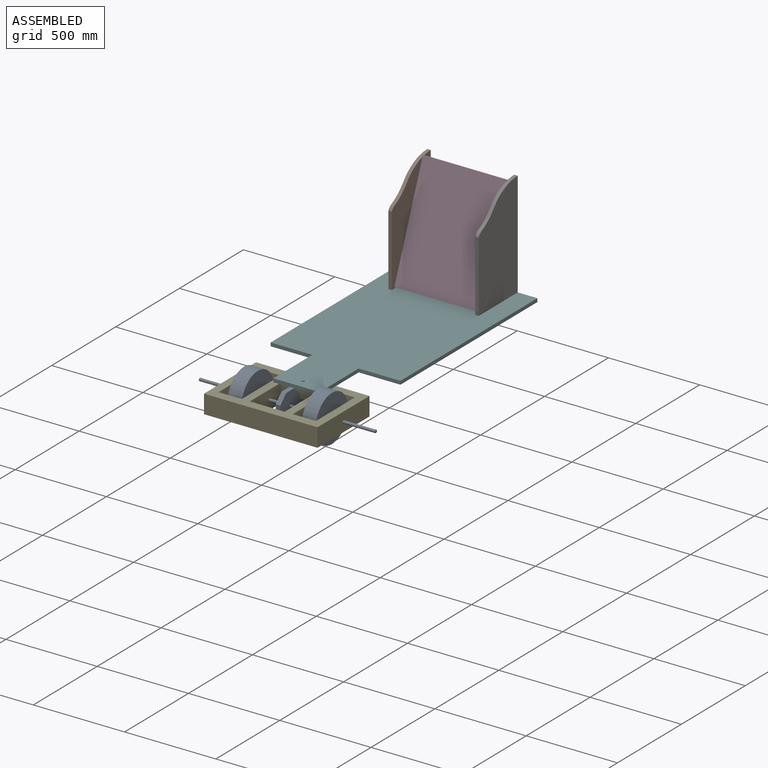
[diagram: assembled view]
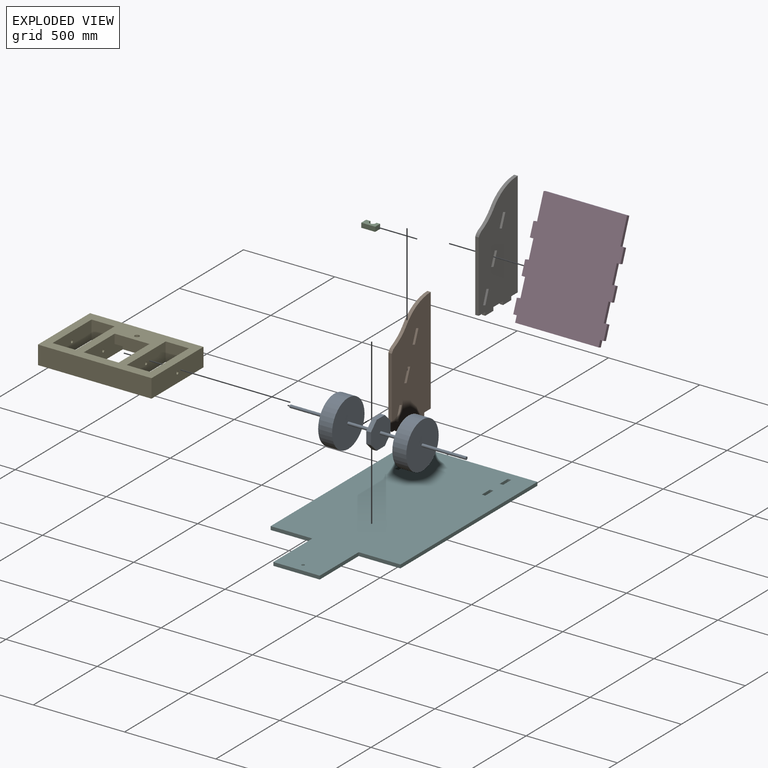
[diagram: exploded view]
GUIDED TOUR — MATED ASSEMBLY (Onshape document 58a49baa3522310f74b2d55f, AutoMate assembly 58a49baa3522310f74b2d55f_a1bebd2f9ff3c57875644e7e_dae027c91e7e28ab9456b760_default)

This assembly has 7 components, labeled P0..P6 below (a component is one placed occurrence of a part; the same part can appear more than once), held together by 6 mates. A mate is a constraint between two components; its type names the relative motion it leaves free:
  FASTENED — locks the two components together rigidly (no relative motion),
  REVOLUTE — leaves rotation about the listed axis free (a hinge).
Axis/direction vectors are unit vectors and 'through' points are millimeter coordinates, both in the assembly's world frame.

MATES
  1. FASTENED "Fastened 5": P2 <-> P1, direction (1.000, 0.000, 0.000) through (-527.93, 460.49, 2.49) mm
  2. FASTENED "Fastened 1": P6 <-> P5, direction (0.000, 1.000, 0.000) through (-61.21, 599.28, -205.49) mm
  3. FASTENED "Fastened 2": P1 <-> P5, direction (0.000, 1.000, 0.000) through (-537.46, 599.28, -205.49) mm
  4. REVOLUTE "Revolute 2": P0 <-> P4, axis (-1.000, 0.000, 0.000) through (-204.95, -802.50, -265.82) mm
  5. FASTENED "Fastened 3": P3 <-> P1, direction (0.000, 0.366, 0.931) through (-537.46, 544.50, 242.38) mm
  6. REVOLUTE "Revolute 1": P4 <-> P5, axis (0.000, 0.000, 1.000) through (-299.33, -675.97, -215.02) mm

ASSEMBLY ORDER
  1. P6 — the base component [order verified]
  2. P3 [order verified]
  3. P1 [order verified]
  4. P5 [order verified]
  5. P0 [order verified]
  6. P4 [order verified]
  7. P2 [order verified]
(P1, P3 verified with a relaxed clearance tolerance: the source model stores slight part interference there.)
Order-tag legend:
  [order verified] — this step's position reverses a verified removal order: the component was checked to insert without passing through the ones already placed.

Of the 7 components, 6 carry the full construction recipe — the FeatureScript program that regenerates the part's solid from scratch; the rest are supplied as boundary geometry only.
Each toured component is shown spotlighted twice — in the assembled view, then in the exploded view, where a leader line traces a displaced component back to its assembled socket (saturated green if recipe-attached, orange if geometry-only; every other component desaturated gray) — followed by its recipe or geometry summary and the mates that hold it.
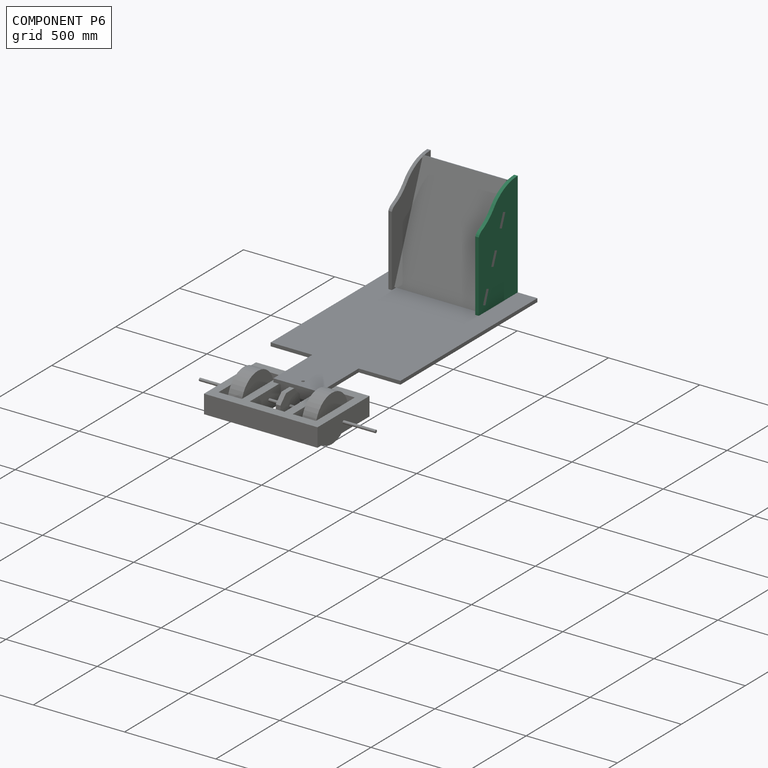
[diagram: component P6 — assembled]
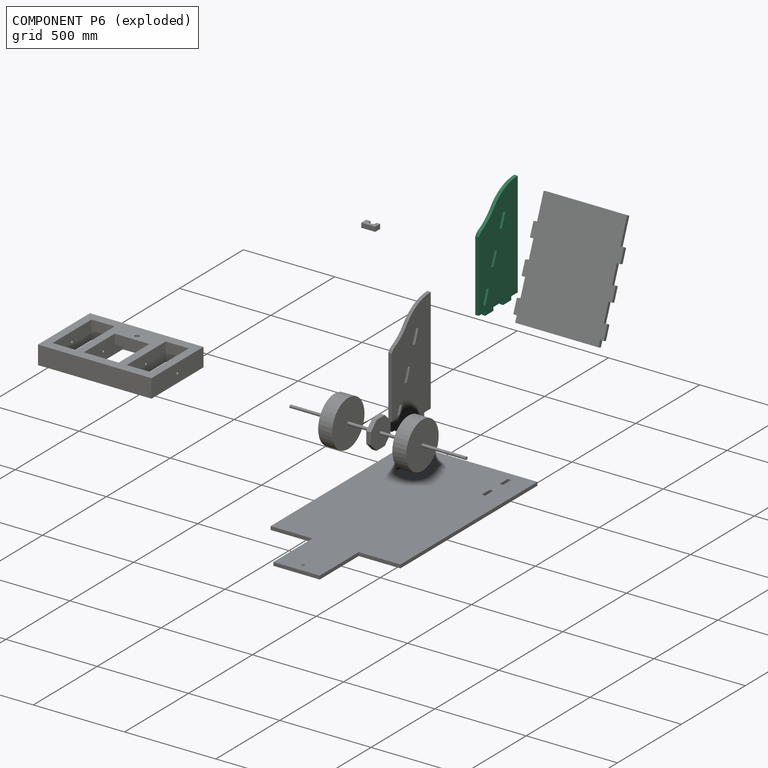
[diagram: component P6 — exploded]
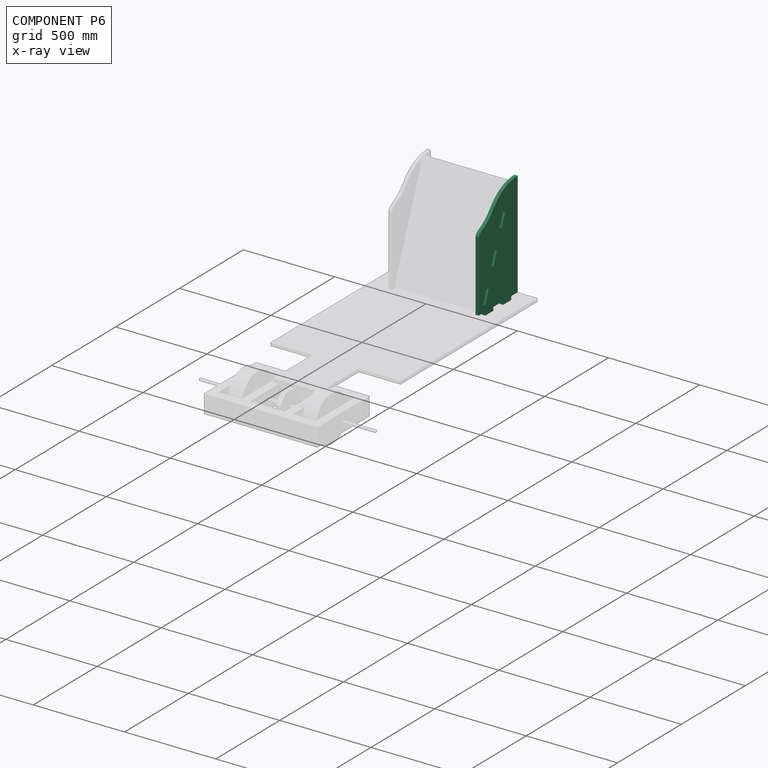
[diagram: component P6 — x-ray view]
COMPONENT P6 — same part as P1 (CADFS 00480245); its construction recipe is shown at P1.
Held by: FASTENED mate "Fastened 1" to P5.
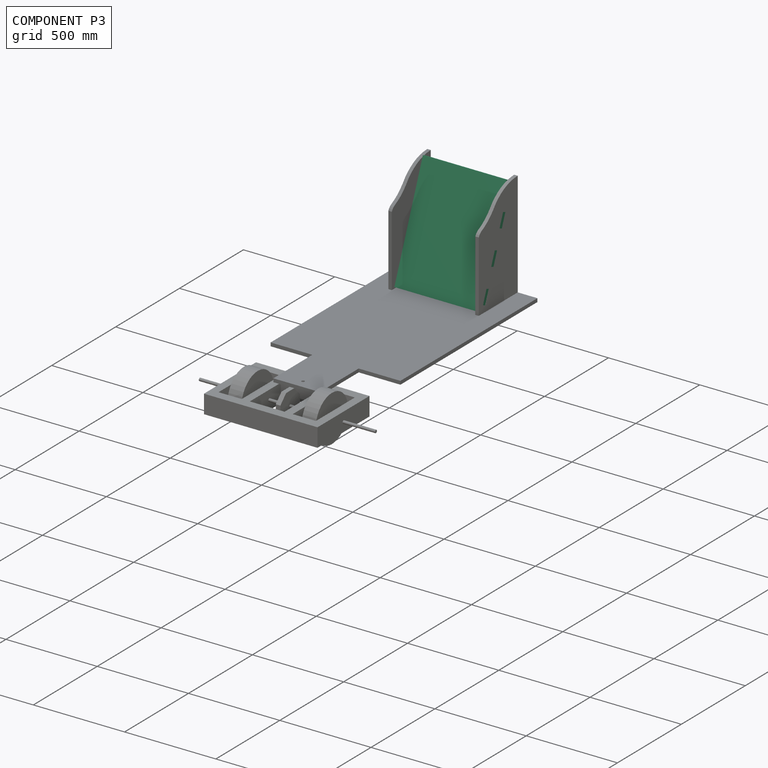
[diagram: component P3 — assembled]
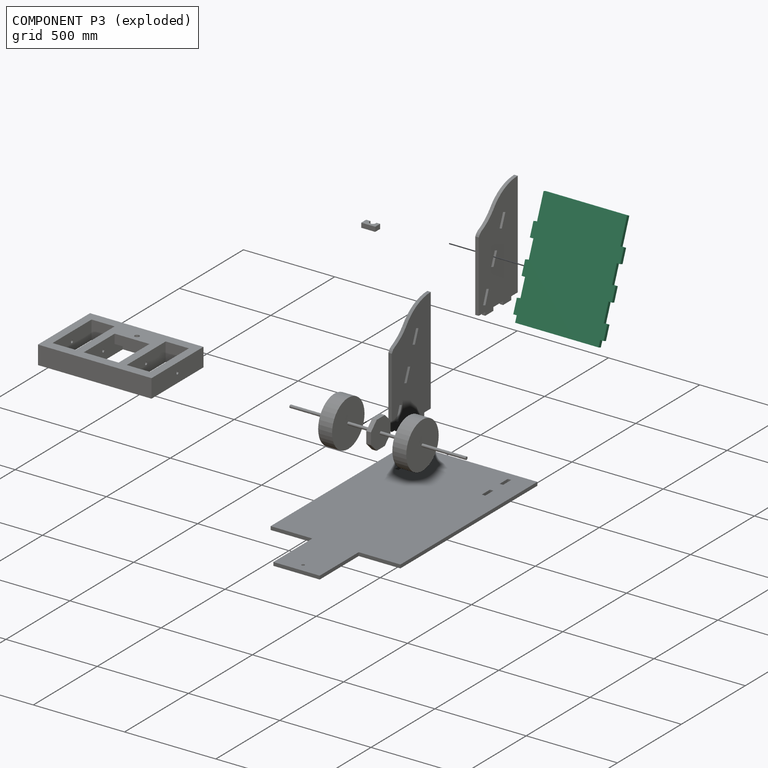
[diagram: component P3 — exploded]
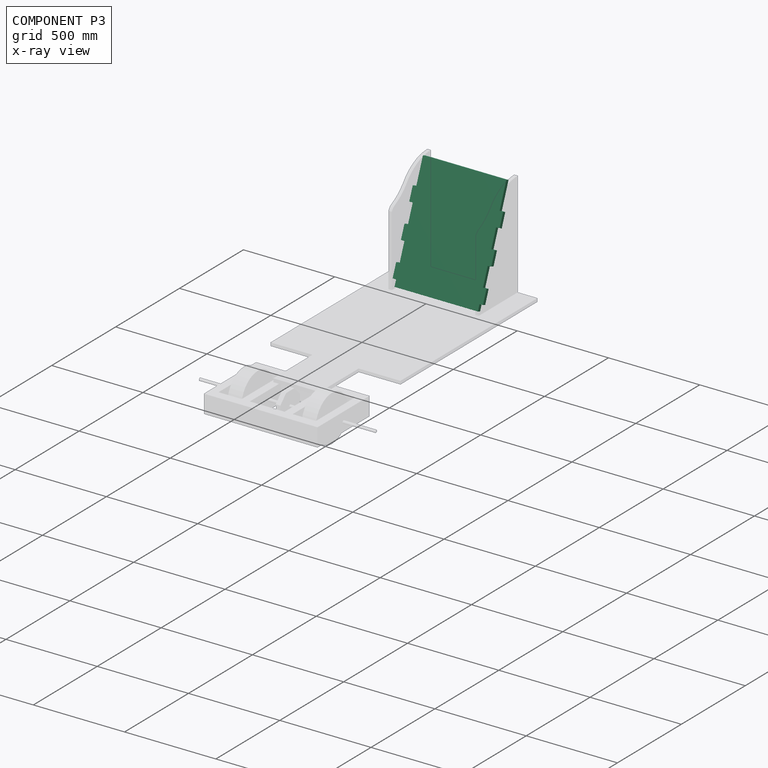
[diagram: component P3 — x-ray view]
COMPONENT P3 — recipe-attached (CADFS 00534120, mesh-verified: the recipe's output STEP matches this component's geometry to below the mesh-comparison resolution (tessellation chordal tolerance ~1.18 mm)).
Held by: FASTENED mate "Fastened 3" to P1.
Construction recipe (FeatureScript — the CAD program that rebuilds this solid; sketch coordinates are in the units given by the * unit suffixes, e.g. mm):

FeatureScript 1511;
import(path : "onshape/std/geometry.fs", version : "1511.0");
import(path : "onshape/std/common.fs", version : "1511.0");
const mm = millimeter;
const VERTEX = EntityType.VERTEX;
const EDGE = EntityType.EDGE;
const FACE = EntityType.FACE;
const BODY = EntityType.BODY;
function v(x, y){return vector(x, y);}
function OD(order){return orderDisambiguation(order);}
function OSD(set){return originalSetDisambiguation(set);}
function TD(topology){return topologyDisambiguation(topology);}
function TDD(query){return trueDependencyDisambiguation(query);}
function sQuery(a, b, c) {return sketchEntityQuery(a, b, c);}

annotation { "Feature Type Name" : "Feature", "Feature Type Description" : "" }
export const myFeature = defineFeature(function(context is Context, id is Id, definition is map)
    precondition{}
    {
        {
            var Q0;
            Q0=qCreatedBy(makeId("Right.planeOp"),FACE);
            var sketch = newSketch(context, id + "F0", { "sketchPlane" : qUnion([Q0])});
            skLineSegment(sketch, "E0.bottom", {"start": v(0, 0) * mm, "end": v(457.2, 0) * mm});
            skLineSegment(sketch, "E0.top", {"start": v(0, 609.6) * mm, "end": v(457.2, 609.6) * mm});
            skLineSegment(sketch, "E0.left", {"start": v(0, 0) * mm, "end": v(0, 609.6) * mm});
            skLineSegment(sketch, "E0.right", {"start": v(457.2, 0) * mm, "end": v(457.2, 609.6) * mm});
            skLineSegment(sketch, "E1.bottom", {"start": v(457.2, 34.46) * mm, "end": v(476.25, 34.46) * mm});
            skLineSegment(sketch, "E1.top", {"start": v(457.2, 110.66) * mm, "end": v(476.25, 110.66) * mm});
            skLineSegment(sketch, "E1.left", {"start": v(457.2, 34.46) * mm, "end": v(457.2, 110.66) * mm});
            skLineSegment(sketch, "E1.right", {"start": v(476.25, 34.46) * mm, "end": v(476.25, 110.66) * mm});
            skLineSegment(sketch, "E2", {"start": v(457.2, 110.66) * mm, "end": v(457.2, 212.26) * mm, "construction": true});
            skLineSegment(sketch, "E3", {"start": v(457.2, 212.26) * mm, "end": v(457.2, 288.46) * mm});
            skLineSegment(sketch, "E4", {"start": v(457.2, 288.46) * mm, "end": v(457.2, 390.06) * mm, "construction": true});
            skLineSegment(sketch, "E5", {"start": v(457.2, 390.06) * mm, "end": v(457.2, 466.26) * mm});
            skLineSegment(sketch, "E6", {"start": v(457.2, 212.26) * mm, "end": v(476.25, 212.26) * mm});
            skLineSegment(sketch, "E7", {"start": v(457.2, 288.46) * mm, "end": v(476.25, 288.46) * mm});
            skLineSegment(sketch, "E8", {"start": v(457.2, 390.06) * mm, "end": v(476.25, 390.06) * mm});
            skLineSegment(sketch, "E9", {"start": v(457.2, 466.26) * mm, "end": v(476.25, 466.26) * mm});
            skLineSegment(sketch, "E10", {"start": v(476.25, 466.26) * mm, "end": v(476.25, 390.06) * mm});
            skLineSegment(sketch, "E11", {"start": v(476.25, 288.46) * mm, "end": v(476.25, 212.26) * mm});
            skLineSegment(sketch, "E12", {"start": v(228.6, 609.6) * mm, "end": v(228.6, 0) * mm, "construction": true});
            skLineSegment(sketch, "E13.MirrorCS", {"start": v(0, 466.26) * mm, "end": v(-19.05, 466.26) * mm});
            skLineSegment(sketch, "E14.MirrorCS", {"start": v(-19.05, 466.26) * mm, "end": v(-19.05, 390.06) * mm});
            skLineSegment(sketch, "E15.MirrorCS", {"start": v(-19.05, 288.46) * mm, "end": v(-19.05, 212.26) * mm});
            skLineSegment(sketch, "E16.MirrorCS", {"start": v(-19.05, 34.46) * mm, "end": v(-19.05, 110.66) * mm});
            skLineSegment(sketch, "E17.MirrorCS", {"start": v(0, 34.46) * mm, "end": v(-19.05, 34.46) * mm});
            skLineSegment(sketch, "E18.MirrorCS", {"start": v(0, 110.66) * mm, "end": v(-19.05, 110.66) * mm});
            skLineSegment(sketch, "E19.MirrorCS", {"start": v(0, 212.26) * mm, "end": v(-19.05, 212.26) * mm});
            skLineSegment(sketch, "E20.MirrorCS", {"start": v(0, 288.46) * mm, "end": v(-19.05, 288.46) * mm});
            skLineSegment(sketch, "E21.MirrorCS", {"start": v(0, 390.06) * mm, "end": v(-19.05, 390.06) * mm});
            skSolve(sketch);
        }
        {
            var Q0;
            Q0=qSketchRegion(id+"F0",true);
            extrude(context, id + "F1", {"entities" : qUnion([Q0]), "depth" : 19.05 * mm});
        }
    });
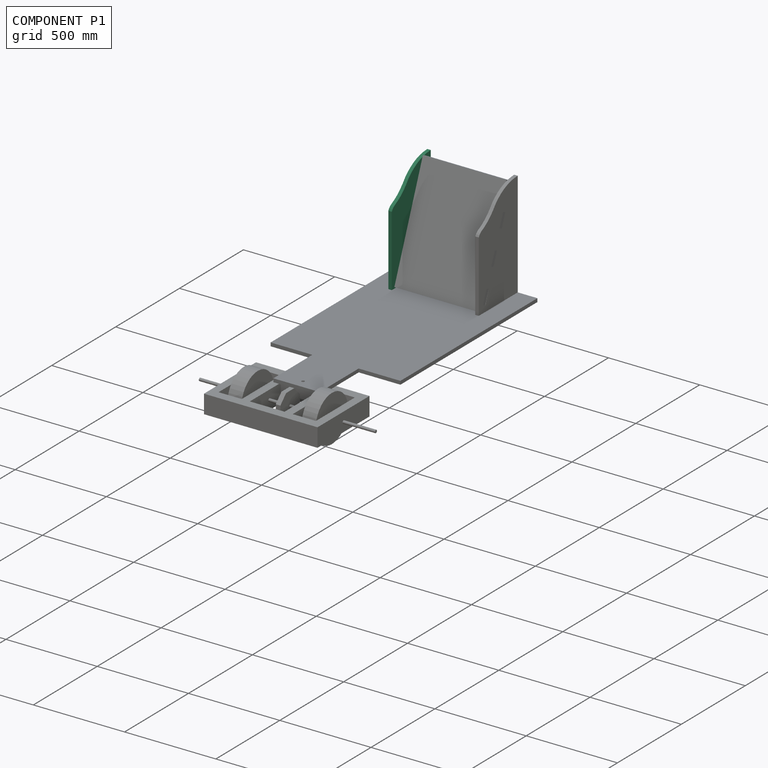
[diagram: component P1 — assembled]
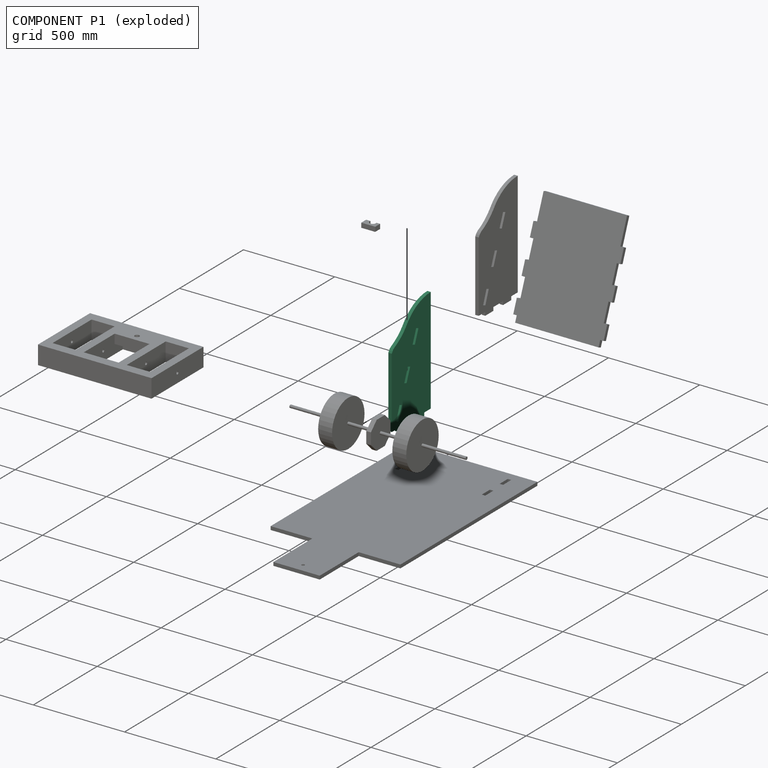
[diagram: component P1 — exploded]
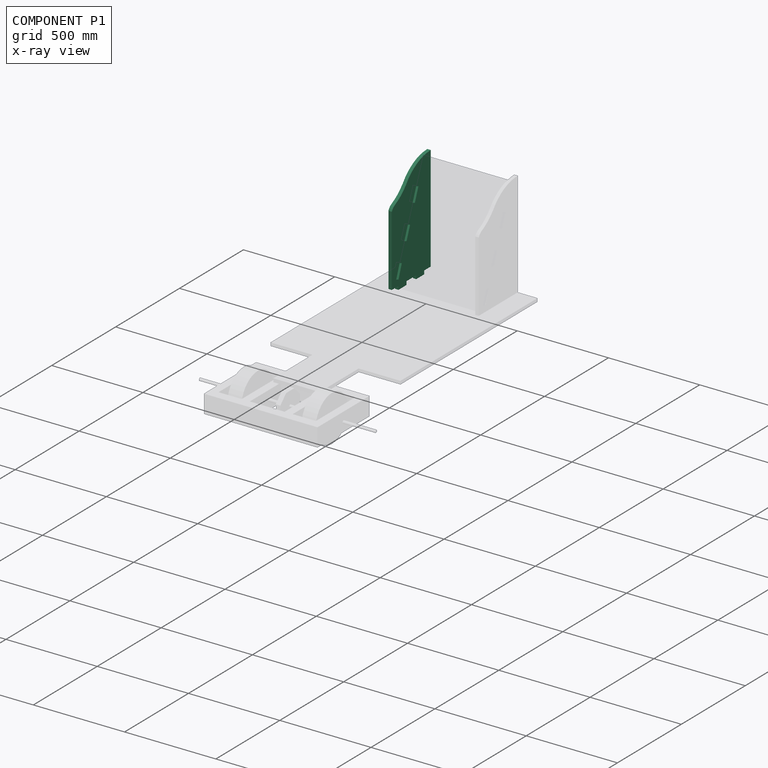
[diagram: component P1 — x-ray view]
COMPONENT P1 — recipe-attached (CADFS 00480245, mesh-verified: the recipe's output STEP matches this component's geometry to below the mesh-comparison resolution (tessellation chordal tolerance ~1.01 mm)).
Held by: FASTENED mate "Fastened 5" to P2; FASTENED mate "Fastened 2" to P5; FASTENED mate "Fastened 3" to P3.
Construction recipe (FeatureScript — the CAD program that rebuilds this solid; sketch coordinates are in the units given by the * unit suffixes, e.g. mm):

FeatureScript 1511;
import(path : "onshape/std/geometry.fs", version : "1511.0");
import(path : "onshape/std/common.fs", version : "1511.0");
const mm = millimeter;
const VERTEX = EntityType.VERTEX;
const EDGE = EntityType.EDGE;
const FACE = EntityType.FACE;
const BODY = EntityType.BODY;
function v(x, y){return vector(x, y);}
function OD(order){return orderDisambiguation(order);}
function OSD(set){return originalSetDisambiguation(set);}
function TD(topology){return topologyDisambiguation(topology);}
function TDD(query){return trueDependencyDisambiguation(query);}
function sQuery(a, b, c) {return sketchEntityQuery(a, b, c);}

annotation { "Feature Type Name" : "Feature", "Feature Type Description" : "" }
export const myFeature = defineFeature(function(context is Context, id is Id, definition is map)
    precondition{}
    {
        {
            var Q0;
            Q0=qCreatedBy(makeId("Front.planeOp"),FACE);
            var sketch = newSketch(context, id + "F0", { "sketchPlane" : qUnion([Q0])});
            skLineSegment(sketch, "E0.top", {"start": v(-137.72, -331.71) * mm, "end": v(-86.92, -331.71) * mm});
            skLineSegment(sketch, "E0.right", {"start": v(167.08, 262.22) * mm, "end": v(167.08, 261.08) * mm});
            skLineSegment(sketch, "E1.top", {"start": v(-86.92, -350.76) * mm, "end": v(-23.42, -350.76) * mm});
            skLineSegment(sketch, "E1.left", {"start": v(-86.92, -331.71) * mm, "end": v(-86.92, -350.76) * mm});
            skLineSegment(sketch, "E1.right", {"start": v(-23.42, -331.71) * mm, "end": v(-23.42, -350.76) * mm});
            skLineSegment(sketch, "E2.top", {"start": v(52.78, -350.76) * mm, "end": v(116.28, -350.76) * mm});
            skLineSegment(sketch, "E2.left", {"start": v(52.78, -331.71) * mm, "end": v(52.78, -350.76) * mm});
            skLineSegment(sketch, "E2.right", {"start": v(116.28, -331.71) * mm, "end": v(116.28, -350.76) * mm});
            skLineSegment(sketch, "E3.trimOffspring", {"start": v(-23.42, -331.71) * mm, "end": v(52.78, -331.71) * mm});
            skLineSegment(sketch, "E4.trimOffspring", {"start": v(116.28, -331.71) * mm, "end": v(167.08, -331.71) * mm});
            skLineSegment(sketch, "E5", {"start": v(-137.72, -331.71) * mm, "end": v(-137.72, -183.12) * mm});
            skArc(sketch, "E6", {"start": v(167.08, 261.08) * mm, "mid": v(167.1, 261.65) * mm, "end": v(167.08, 262.22) * mm});
            skLineSegment(sketch, "E7.trimOffspring", {"start": v(167.08, 245.77) * mm, "end": v(167.08, -331.71) * mm});
            skLineSegment(sketch, "E8", {"start": v(-137.72, 56.17) * mm, "end": v(-137.72, -183.12) * mm});
            skArc(sketch, "E9", {"start": v(167.08, 245.77) * mm, "mid": v(59.02, 220.06) * mm, "end": v(-25.9, 148.43) * mm});
            skArc(sketch, "E10", {"start": v(-116.1, 79.61) * mm, "mid": v(-67.16, 109) * mm, "end": v(-25.9, 148.43) * mm});
            skArc(sketch, "E11", {"start": v(-116.1, 79.61) * mm, "mid": v(-129.1, 69.92) * mm, "end": v(-137.72, 56.17) * mm});
            skLineSegment(sketch, "E12", {"start": v(-103.45, -292.46) * mm, "end": v(-77.4, -220.86) * mm});
            skLineSegment(sketch, "E13", {"start": v(-103.45, -292.46) * mm, "end": v(-85.55, -298.98) * mm});
            skLineSegment(sketch, "E14", {"start": v(-85.55, -298.98) * mm, "end": v(-59.66, -227.83) * mm});
            skLineSegment(sketch, "E15", {"start": v(-59.66, -227.83) * mm, "end": v(-77.4, -220.86) * mm});
            skLineSegment(sketch, "E16", {"start": v(-77.4, -220.86) * mm, "end": v(-40.24, -126.3) * mm, "construction": true});
            skLineSegment(sketch, "E17", {"start": v(-40.24, -126.3) * mm, "end": v(-12.37, -55.37) * mm});
            skLineSegment(sketch, "E18", {"start": v(-40.24, -126.3) * mm, "end": v(-22.5, -133.26) * mm});
            skLineSegment(sketch, "E19", {"start": v(-22.5, -133.26) * mm, "end": v(5.36, -62.34) * mm});
            skLineSegment(sketch, "E20", {"start": v(-12.37, -55.37) * mm, "end": v(5.36, -62.34) * mm});
            skLineSegment(sketch, "E21", {"start": v(-12.37, -55.37) * mm, "end": v(24.78, 39.19) * mm, "construction": true});
            skLineSegment(sketch, "E22", {"start": v(24.78, 39.19) * mm, "end": v(52.65, 110.11) * mm});
            skLineSegment(sketch, "E23", {"start": v(24.78, 39.19) * mm, "end": v(42.51, 32.22) * mm});
            skLineSegment(sketch, "E24", {"start": v(42.51, 32.22) * mm, "end": v(70.38, 103.15) * mm});
            skLineSegment(sketch, "E25", {"start": v(70.38, 103.15) * mm, "end": v(52.65, 110.11) * mm});
            skSolve(sketch);
        }
        {
            var Q0;
            Q0=makeQuery(id+"F0.imprint","IMPRINT",FACE,{"disambiguationData":[TD([[makeQuery(id+"F0.imprint","IMPRINT",EDGE,{"derivedFrom":sQuery(id+"F0.wireOp",EDGE,"E0.top")}),1.0]])]});
            extrude(context, id + "F1", {"entities" : qUnion([Q0]), "depth" : 19.05 * mm});
        }
    });
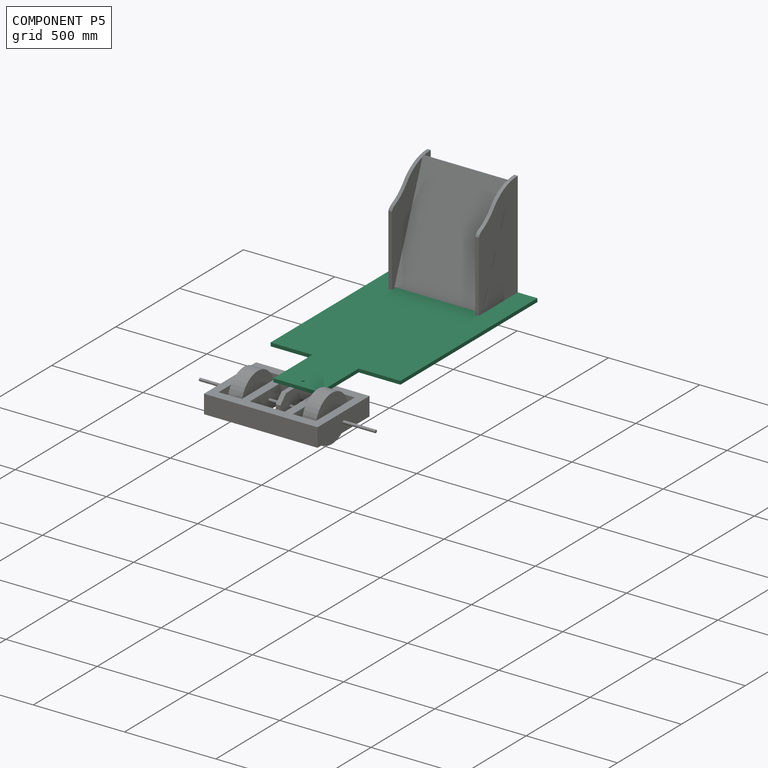
[diagram: component P5 — assembled]
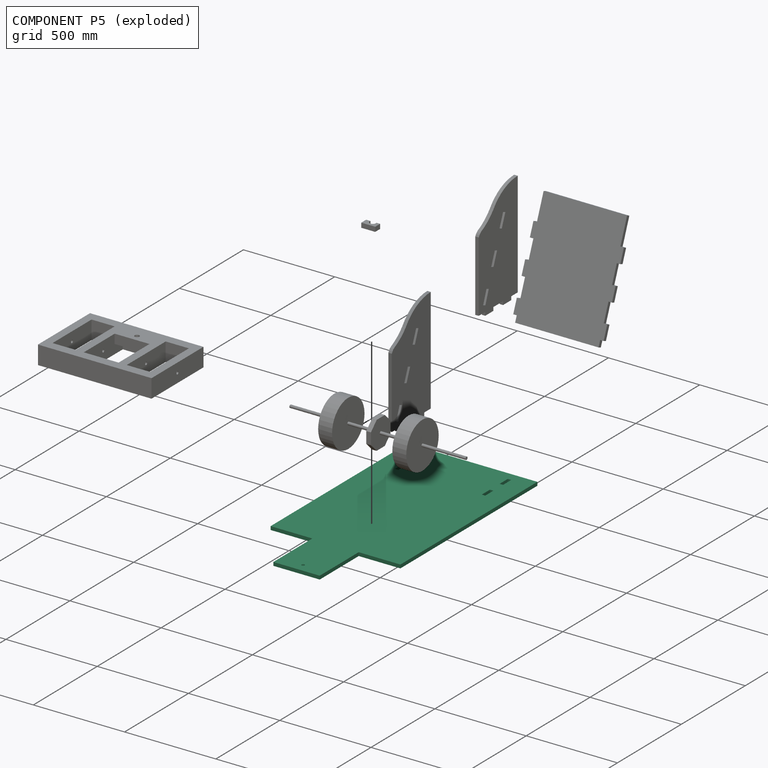
[diagram: component P5 — exploded]
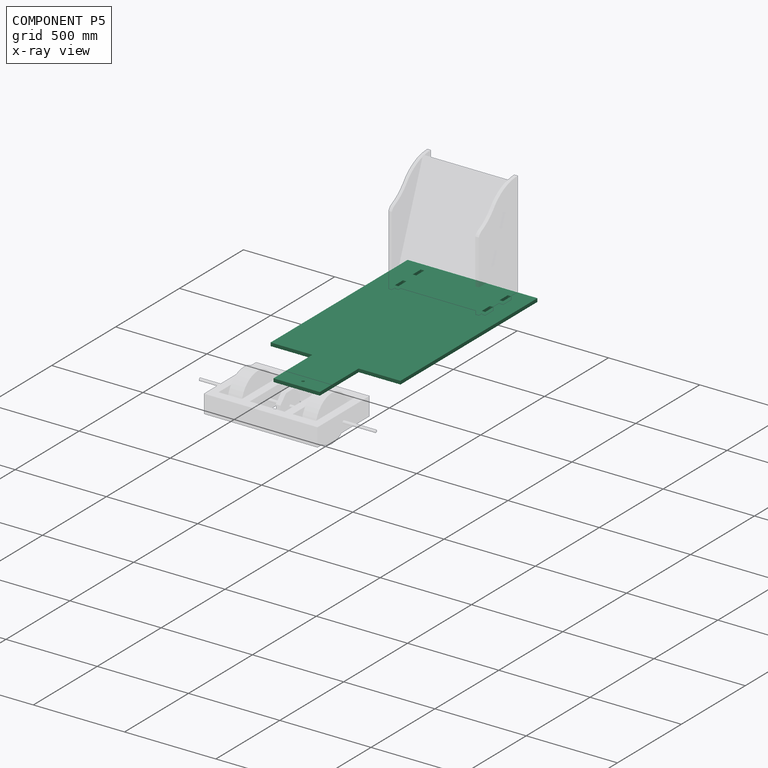
[diagram: component P5 — x-ray view]
COMPONENT P5 — recipe-attached (CADFS 00534115, mesh-verified: the recipe's output STEP matches this component's geometry to below the mesh-comparison resolution (tessellation chordal tolerance ~2.32 mm)).
Held by: FASTENED mate "Fastened 1" to P6; FASTENED mate "Fastened 2" to P1; REVOLUTE mate "Revolute 1" to P4.
Construction recipe (FeatureScript — the CAD program that rebuilds this solid; sketch coordinates are in the units given by the * unit suffixes, e.g. mm):

FeatureScript 1511;
import(path : "onshape/std/geometry.fs", version : "1511.0");
import(path : "onshape/std/common.fs", version : "1511.0");
const mm = millimeter;
const VERTEX = EntityType.VERTEX;
const EDGE = EntityType.EDGE;
const FACE = EntityType.FACE;
const BODY = EntityType.BODY;
function v(x, y){return vector(x, y);}
function OD(order){return orderDisambiguation(order);}
function OSD(set){return originalSetDisambiguation(set);}
function TD(topology){return topologyDisambiguation(topology);}
function TDD(query){return trueDependencyDisambiguation(query);}
function sQuery(a, b, c) {return sketchEntityQuery(a, b, c);}

annotation { "Feature Type Name" : "Feature", "Feature Type Description" : "" }
export const myFeature = defineFeature(function(context is Context, id is Id, definition is map)
    precondition{}
    {
        {
            var Q0;
            Q0=qCreatedBy(makeId("Top.planeOp"),FACE);
            var sketch = newSketch(context, id + "F0", { "sketchPlane" : qUnion([Q0])});
            skLineSegment(sketch, "E0", {"start": v(711.2, 304.8) * mm, "end": v(711.2, 1371.6) * mm, "construction": true});
            skLineSegment(sketch, "E1", {"start": v(203.2, 304.8) * mm, "end": v(203.2, 1371.6) * mm, "construction": true});
            skLineSegment(sketch, "E2", {"start": v(635, 1371.6) * mm, "end": v(635, 1320.8) * mm, "construction": true});
            skLineSegment(sketch, "E3", {"start": v(635, 1320.8) * mm, "end": v(635, 1257.3) * mm});
            skLineSegment(sketch, "E4", {"start": v(635, 1257.3) * mm, "end": v(635, 1181.1) * mm, "construction": true});
            skLineSegment(sketch, "E5", {"start": v(635, 1181.1) * mm, "end": v(635, 1117.6) * mm});
            skLineSegment(sketch, "E6", {"start": v(406.4, 0) * mm, "end": v(406.4, 1371.6) * mm, "construction": true});
            skLineSegment(sketch, "E7.MirrorCS", {"start": v(177.8, 1181.1) * mm, "end": v(177.8, 1117.6) * mm});
            skLineSegment(sketch, "E8.MirrorCS", {"start": v(177.8, 1320.8) * mm, "end": v(177.8, 1257.3) * mm});
            skLineSegment(sketch, "E9", {"start": v(635, 1181.1) * mm, "end": v(654.05, 1181.1) * mm});
            skLineSegment(sketch, "E10", {"start": v(654.05, 1181.1) * mm, "end": v(654.05, 1117.6) * mm});
            skLineSegment(sketch, "E11", {"start": v(654.05, 1117.6) * mm, "end": v(635, 1117.6) * mm});
            skLineSegment(sketch, "E12.MirrorCS", {"start": v(158.75, 1117.6) * mm, "end": v(177.8, 1117.6) * mm});
            skLineSegment(sketch, "E13.MirrorCS", {"start": v(158.75, 1181.1) * mm, "end": v(158.75, 1117.6) * mm});
            skLineSegment(sketch, "E14.MirrorCS", {"start": v(177.8, 1181.1) * mm, "end": v(158.75, 1181.1) * mm});
            skLineSegment(sketch, "E15", {"start": v(635, 1257.3) * mm, "end": v(654.05, 1257.3) * mm});
            skLineSegment(sketch, "E16", {"start": v(654.05, 1257.3) * mm, "end": v(654.05, 1320.8) * mm});
            skLineSegment(sketch, "E17", {"start": v(654.05, 1320.8) * mm, "end": v(635, 1320.8) * mm});
            skLineSegment(sketch, "E18.MirrorCS", {"start": v(177.8, 1257.3) * mm, "end": v(158.75, 1257.3) * mm});
            skLineSegment(sketch, "E19.MirrorCS", {"start": v(158.75, 1257.3) * mm, "end": v(158.75, 1320.8) * mm});
            skLineSegment(sketch, "E20.MirrorCS", {"start": v(158.75, 1320.8) * mm, "end": v(177.8, 1320.8) * mm});
            skLineSegment(sketch, "E21", {"start": v(50.8, 1371.6) * mm, "end": v(50.8, 299.55) * mm});
            skLineSegment(sketch, "E22", {"start": v(762, 299.55) * mm, "end": v(762, 1371.6) * mm});
            skPoint(sketch, "E23.middle", {"position": v(406.4, 372.6) * mm});
            skLineSegment(sketch, "E24", {"start": v(533.4, 299.55) * mm, "end": v(533.4, -5.25) * mm});
            skLineSegment(sketch, "E25", {"start": v(533.4, -5.25) * mm, "end": v(279.4, -5.25) * mm});
            skLineSegment(sketch, "E26", {"start": v(279.4, -5.25) * mm, "end": v(279.4, 299.55) * mm});
            skLineSegment(sketch, "E27", {"start": v(279.4, 299.55) * mm, "end": v(50.8, 299.55) * mm});
            skLineSegment(sketch, "E28", {"start": v(279.4, 299.55) * mm, "end": v(279.4, 197.95) * mm});
            skLineSegment(sketch, "E29", {"start": v(279.4, 197.95) * mm, "end": v(533.4, 197.95) * mm, "construction": true});
            skLineSegment(sketch, "E30", {"start": v(533.4, 197.95) * mm, "end": v(533.4, 299.55) * mm});
            skLineSegment(sketch, "E31", {"start": v(50.8, 1371.6) * mm, "end": v(762, 1371.6) * mm});
            skLineSegment(sketch, "E32", {"start": v(50.8, 299.55) * mm, "end": v(279.4, 299.55) * mm});
            skLineSegment(sketch, "E33", {"start": v(762, 299.55) * mm, "end": v(533.4, 299.55) * mm});
            skSolve(sketch);
        }
        {
            var Q0;
            Q0=makeQuery(id+"F0.imprint","IMPRINT",FACE,{"disambiguationData":[TD([[makeQuery(id+"F0.imprint","IMPRINT",EDGE,{"derivedFrom":sQuery(id+"F0.wireOp",EDGE,"E3")}),-1.0]])]});
            extrude(context, id + "F1", {"entities" : qUnion([Q0]), "depth" : 19.05 * mm, "offsetDistance" : 25.4 * mm});
        }
        {
            var Q0;
            Q0=makeQuery(id+"F1.opExtrude","CAP_FACE",FACE,{"disambiguationData":[OSD([sQuery(id+"F0.wireOp",EDGE,"E3"),sQuery(id+"F0.wireOp",EDGE,"E5"),sQuery(id+"F0.wireOp",EDGE,"E7.MirrorCS"),sQuery(id+"F0.wireOp",EDGE,"E8.MirrorCS"),sQuery(id+"F0.wireOp",EDGE,"E9"),sQuery(id+"F0.wireOp",EDGE,"E10"),sQuery(id+"F0.wireOp",EDGE,"E11"),sQuery(id+"F0.wireOp",EDGE,"E12.MirrorCS"),sQuery(id+"F0.wireOp",EDGE,"E13.MirrorCS"),sQuery(id+"F0.wireOp",EDGE,"E14.MirrorCS"),sQuery(id+"F0.wireOp",EDGE,"E15"),sQuery(id+"F0.wireOp",EDGE,"E16"),sQuery(id+"F0.wireOp",EDGE,"E17"),sQuery(id+"F0.wireOp",EDGE,"E18.MirrorCS"),sQuery(id+"F0.wireOp",EDGE,"E19.MirrorCS"),sQuery(id+"F0.wireOp",EDGE,"E20.MirrorCS"),sQuery(id+"F0.wireOp",EDGE,"4b0ce99d-92c2-4d5a-877c-9357c4aba25a0.MirrorCS"),sQuery(id+"F0.wireOp",EDGE,"E21"),sQuery(id+"F0.wireOp",EDGE,"E22"),sQuery(id+"F0.wireOp",EDGE,"VkGcMUjl-mB8C-SwPy-fy5Y-xW25E71paEz6"),sQuery(id+"F0.wireOp",EDGE,"E24"),sQuery(id+"F0.wireOp",EDGE,"E25"),sQuery(id+"F0.wireOp",EDGE,"E26"),sQuery(id+"F0.wireOp",EDGE,"E27"),sQuery(id+"F0.wireOp",EDGE,"E28"),sQuery(id+"F0.wireOp",EDGE,"E30")])],"isStart":false});
            var sketch = newSketch(context, id + "F2", { "sketchPlane" : qUnion([Q0])});
            skCircle(sketch, "E34", {"center": v(406.4, 45.55) * mm, "radius": 7.94 * mm});
            skLineSegment(sketch, "E35", {"start": v(406.4, -5.25) * mm, "end": v(406.4, 308.97) * mm, "construction": true});
            skLineSegment(sketch, "E36", {"start": v(279.4, 45.55) * mm, "end": v(533.4, 45.55) * mm, "construction": true});
            skSolve(sketch);
        }
        {
            var Q0;
            Q0=makeQuery(id+"F2.imprint","IMPRINT",FACE,{"disambiguationData":[TD([[makeQuery(id+"F2.imprint","IMPRINT",EDGE,{"derivedFrom":sQuery(id+"F2.wireOp",EDGE,"E34")}),1.0]])]});
            extrude(context, id + "F3", {"entities" : qUnion([Q0]), "operationType" : NewBodyOperationType.REMOVE, "endBound" : BoundingType.UP_TO_NEXT, "oppositeDirection" : true, "depth" : 25.4 * mm, "offsetDistance" : 25.4 * mm});
        }
    });
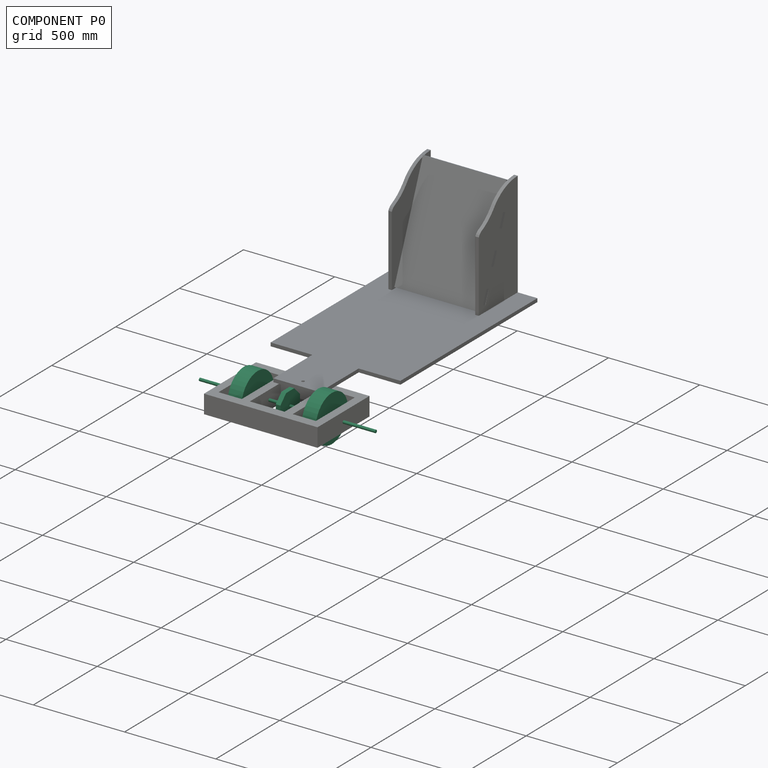
[diagram: component P0 — assembled]
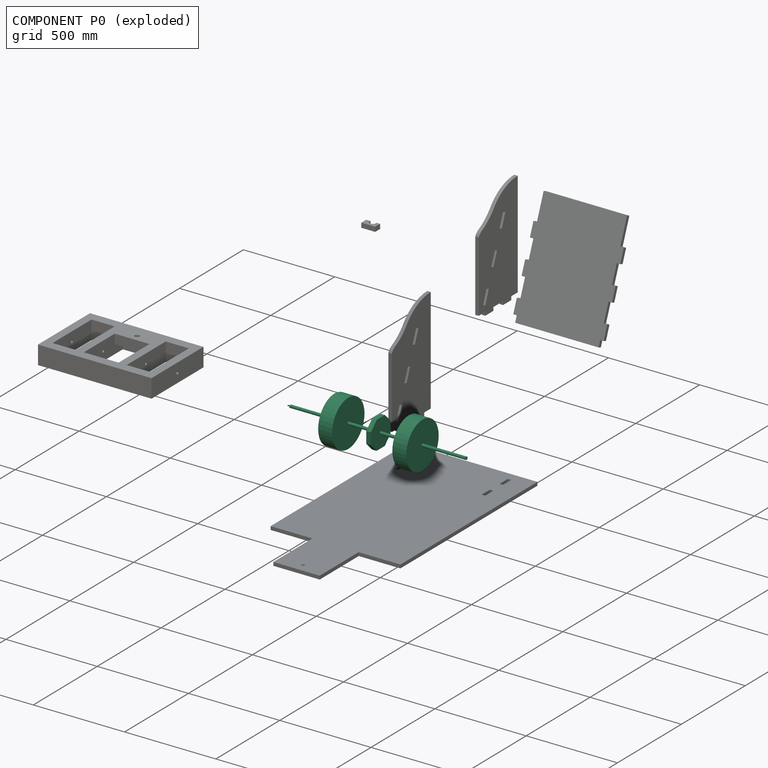
[diagram: component P0 — exploded]
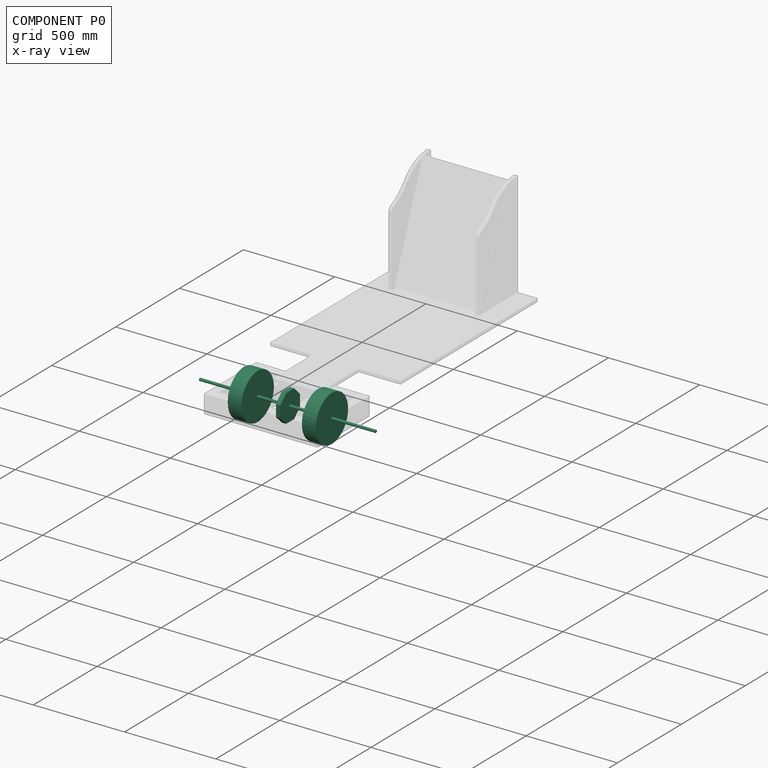
[diagram: component P0 — x-ray view]
COMPONENT P0 — recipe-attached (CADFS 00534117, mesh-verified: the recipe's output STEP matches this component's geometry to below the mesh-comparison resolution (tessellation chordal tolerance ~1.54 mm)).
Held by: REVOLUTE mate "Revolute 2" to P4.
Construction recipe (FeatureScript — the CAD program that rebuilds this solid; sketch coordinates are in the units given by the * unit suffixes, e.g. mm):

FeatureScript 1511;
import(path : "onshape/std/geometry.fs", version : "1511.0");
import(path : "onshape/std/common.fs", version : "1511.0");
const mm = millimeter;
const VERTEX = EntityType.VERTEX;
const EDGE = EntityType.EDGE;
const FACE = EntityType.FACE;
const BODY = EntityType.BODY;
function v(x, y){return vector(x, y);}
function OD(order){return orderDisambiguation(order);}
function OSD(set){return originalSetDisambiguation(set);}
function TD(topology){return topologyDisambiguation(topology);}
function TDD(query){return trueDependencyDisambiguation(query);}
function sQuery(a, b, c) {return sketchEntityQuery(a, b, c);}

annotation { "Feature Type Name" : "Feature", "Feature Type Description" : "" }
export const myFeature = defineFeature(function(context is Context, id is Id, definition is map)
    precondition{}
    {
        {
            var Q0;
            Q0=qCreatedBy(makeId("Right.planeOp"),FACE);
            var sketch = newSketch(context, id + "F0", { "sketchPlane" : qUnion([Q0])});
            skLineSegment(sketch, "E0", {"start": v(0, 0) * mm, "end": v(0, -63.5) * mm});
            skLineSegment(sketch, "E1", {"start": v(0, -63.5) * mm, "end": v(44.9, -108.4) * mm});
            skLineSegment(sketch, "E2", {"start": v(44.9, -108.4) * mm, "end": v(108.4, -108.4) * mm});
            skLineSegment(sketch, "E3", {"start": v(108.4, -108.4) * mm, "end": v(153.3, -63.5) * mm});
            skLineSegment(sketch, "E4", {"start": v(153.3, -63.5) * mm, "end": v(153.3, 0) * mm});
            skLineSegment(sketch, "E5", {"start": v(153.3, 0) * mm, "end": v(108.4, 44.9) * mm});
            skLineSegment(sketch, "E6", {"start": v(108.4, 44.9) * mm, "end": v(44.9, 44.9) * mm});
            skLineSegment(sketch, "E7", {"start": v(44.9, 44.9) * mm, "end": v(0, 0) * mm});
            skSolve(sketch);
        }
        {
            var Q0;
            Q0=makeQuery(id+"F0.imprint","IMPRINT",FACE,{"disambiguationData":[TD([[makeQuery(id+"F0.imprint","IMPRINT",EDGE,{"derivedFrom":sQuery(id+"F0.wireOp",EDGE,"E0")}),1.0]])]});
            extrude(context, id + "F1", {"entities" : qUnion([Q0]), "depth" : 25.4 * mm, "offsetDistance" : 25.4 * mm});
        }
        {
            var Q0;
            Q0=makeQuery(id+"F1.opExtrude","CAP_FACE",FACE,{"disambiguationData":[OSD([sQuery(id+"F0.wireOp",EDGE,"E0"),sQuery(id+"F0.wireOp",EDGE,"E1"),sQuery(id+"F0.wireOp",EDGE,"E2"),sQuery(id+"F0.wireOp",EDGE,"E3"),sQuery(id+"F0.wireOp",EDGE,"E4"),sQuery(id+"F0.wireOp",EDGE,"E5"),sQuery(id+"F0.wireOp",EDGE,"E6"),sQuery(id+"F0.wireOp",EDGE,"E7")])],"isStart":false});
            var sketch = newSketch(context, id + "F2", { "sketchPlane" : qUnion([Q0])});
            skCircle(sketch, "E8", {"center": v(76.65, -31.75) * mm, "radius": 7.94 * mm});
            skPoint(sketch, "E8.centerSnap0", {"position": v(153.3, -31.75) * mm});
            skPoint(sketch, "E8.centerSnap1", {"position": v(76.65, 44.9) * mm});
            skSolve(sketch);
        }
        {
            var Q0;
            Q0=makeQuery(id+"F2.imprint","IMPRINT",FACE,{"disambiguationData":[TD([[makeQuery(id+"F2.imprint","IMPRINT",EDGE,{"derivedFrom":sQuery(id+"F2.wireOp",EDGE,"E8")}),1.0]])]});
            extrude(context, id + "F3", {"entities" : qUnion([Q0]), "operationType" : NewBodyOperationType.ADD, "depth" : 152.4 * mm, "offsetDistance" : 25.4 * mm});
        }
        {
            var Q0;
            Q0=makeQuery(id+"F3.opExtrude","CAP_FACE",FACE,{"disambiguationData":[OSD([sQuery(id+"F2.wireOp",EDGE,"E8")])],"isStart":false});
            var sketch = newSketch(context, id + "F4", { "sketchPlane" : qUnion([Q0])});
            skCircle(sketch, "E9", {"center": v(76.65, -31.75) * mm, "radius": 127 * mm});
            skSolve(sketch);
        }
        {
            var Q0;
            Q0 = qSketchRegion(id + "F4", true);
            extrude(context, id + "F5", {"entities" : qUnion([Q0]), "operationType" : NewBodyOperationType.ADD, "depth" : 76.2 * mm, "offsetDistance" : 25.4 * mm});
        }
        {
            var Q0;
            Q0=makeQuery(id+"F5.opExtrude","CAP_FACE",FACE,{"disambiguationData":[OSD([sQuery(id+"F4.wireOp",EDGE,"E9")])],"isStart":false});
            var sketch = newSketch(context, id + "F6", { "sketchPlane" : qUnion([Q0])});
            skCircle(sketch, "E10", {"center": v(76.65, -31.75) * mm, "radius": 7.94 * mm});
            skSolve(sketch);
        }
        {
            var Q0;
            Q0=makeQuery(id+"F6.imprint","IMPRINT",FACE,{"disambiguationData":[TD([[makeQuery(id+"F6.imprint","IMPRINT",EDGE,{"derivedFrom":sQuery(id+"F6.wireOp",EDGE,"E10")}),1.0]])]});
            extrude(context, id + "F7", {"entities" : qUnion([Q0]), "operationType" : NewBodyOperationType.ADD, "depth" : 241.3 * mm, "offsetDistance" : 25.4 * mm});
        }
        {
            var Q0;
            Q0=makeQuery(id+"F1.opExtrude","CAP_FACE",FACE,{"disambiguationData":[OSD([sQuery(id+"F0.wireOp",EDGE,"E0"),sQuery(id+"F0.wireOp",EDGE,"E1"),sQuery(id+"F0.wireOp",EDGE,"E2"),sQuery(id+"F0.wireOp",EDGE,"E3"),sQuery(id+"F0.wireOp",EDGE,"E4"),sQuery(id+"F0.wireOp",EDGE,"E5"),sQuery(id+"F0.wireOp",EDGE,"E6"),sQuery(id+"F0.wireOp",EDGE,"E7")])],"isStart":true});
            var sketch = newSketch(context, id + "F8", { "sketchPlane" : qUnion([Q0])});
            skCircle(sketch, "E11", {"center": v(-76.65, -31.75) * mm, "radius": 7.94 * mm});
            skPoint(sketch, "E11.centerSnap0", {"position": v(0, -31.75) * mm});
            skPoint(sketch, "E11.centerSnap1", {"position": v(-76.65, 44.9) * mm});
            skSolve(sketch);
        }
        {
            var Q0;
            Q0 = qSketchRegion(id + "F8", true);
            extrude(context, id + "F9", {"entities" : qUnion([Q0]), "operationType" : NewBodyOperationType.ADD, "depth" : 152.4 * mm, "offsetDistance" : 25.4 * mm});
        }
        {
            var Q0;
            Q0=makeQuery(id+"F9.opExtrude","CAP_FACE",FACE,{"disambiguationData":[OSD([sQuery(id+"F8.wireOp",EDGE,"E11")])],"isStart":false});
            var sketch = newSketch(context, id + "F10", { "sketchPlane" : qUnion([Q0])});
            skCircle(sketch, "E12", {"center": v(-76.65, -31.75) * mm, "radius": 127 * mm});
            skSolve(sketch);
        }
        {
            var Q0;
            Q0 = qSketchRegion(id + "F10", true);
            extrude(context, id + "F11", {"entities" : qUnion([Q0]), "operationType" : NewBodyOperationType.ADD, "depth" : 76.2 * mm, "offsetDistance" : 25.4 * mm});
        }
        {
            var Q0;
            Q0=makeQuery(id+"F11.opExtrude","CAP_FACE",FACE,{"disambiguationData":[OSD([sQuery(id+"F10.wireOp",EDGE,"E12")])],"isStart":false});
            var sketch = newSketch(context, id + "F12", { "sketchPlane" : qUnion([Q0])});
            skCircle(sketch, "E13", {"center": v(-76.65, -31.75) * mm, "radius": 7.94 * mm});
            skSolve(sketch);
        }
        {
            var Q0;
            Q0 = qSketchRegion(id + "F12", true);
            extrude(context, id + "F13", {"entities" : qUnion([Q0]), "operationType" : NewBodyOperationType.ADD, "depth" : 241.3 * mm, "offsetDistance" : 25.4 * mm});
        }
    });
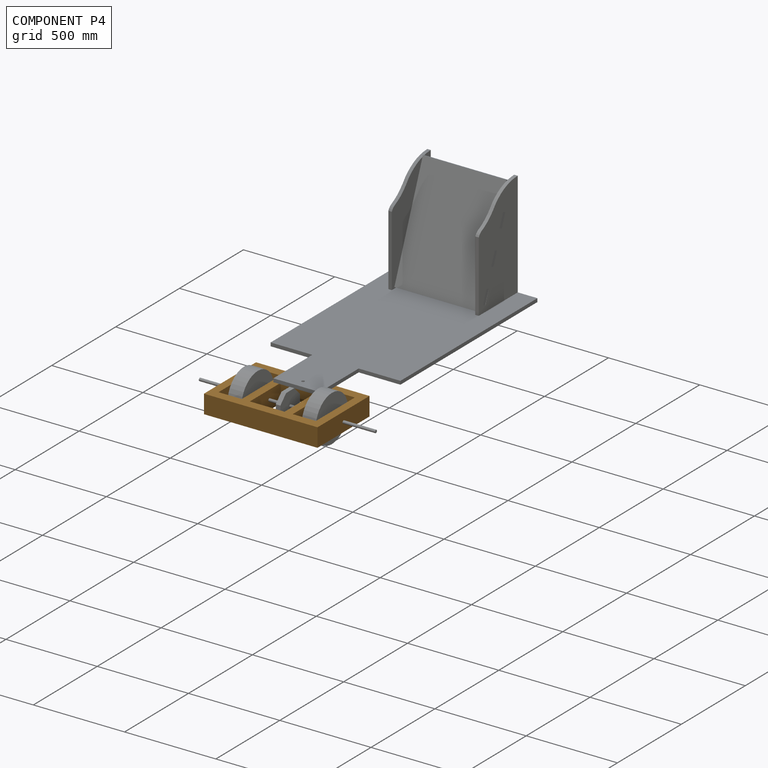
[diagram: component P4 — assembled]
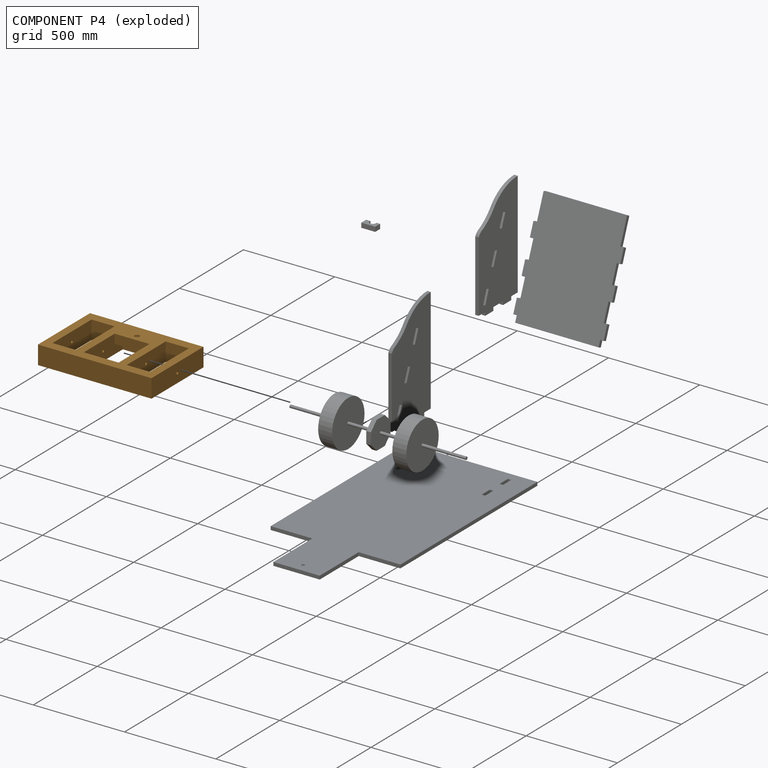
[diagram: component P4 — exploded]
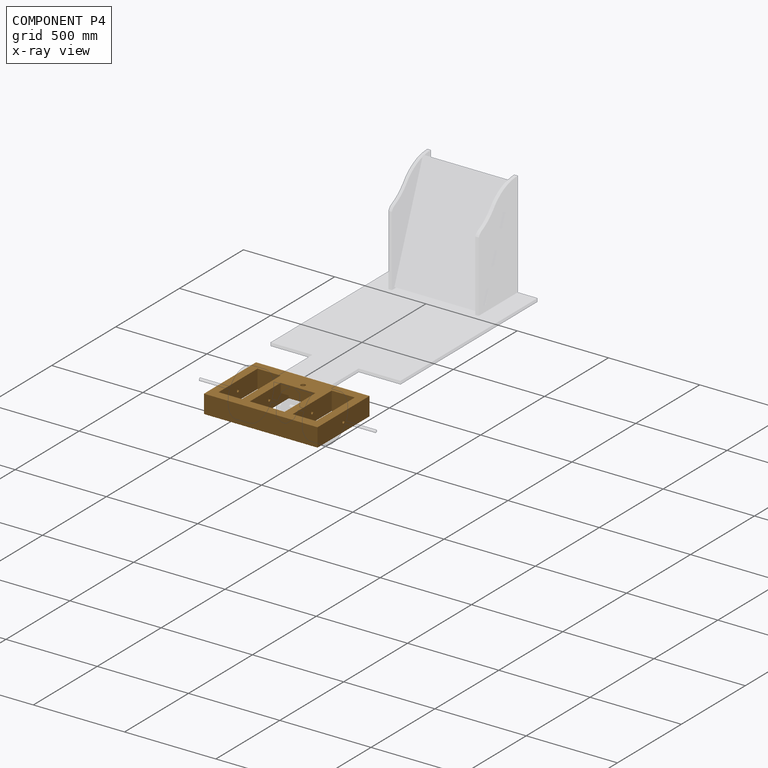
[diagram: component P4 — x-ray view]
COMPONENT P4 — geometry summary (no construction recipe available for this part):
  bounding box: 622.3 x 407.3 x 101.6 mm
  B-rep topology: 1 solid, 27 faces, 158 edges
  volume: 12511356 mm^3 (49% of its bounding box)
  symmetry: mirror-symmetric across its x mid-plane
Held by: REVOLUTE mate "Revolute 2" to P0; REVOLUTE mate "Revolute 1" to P5.
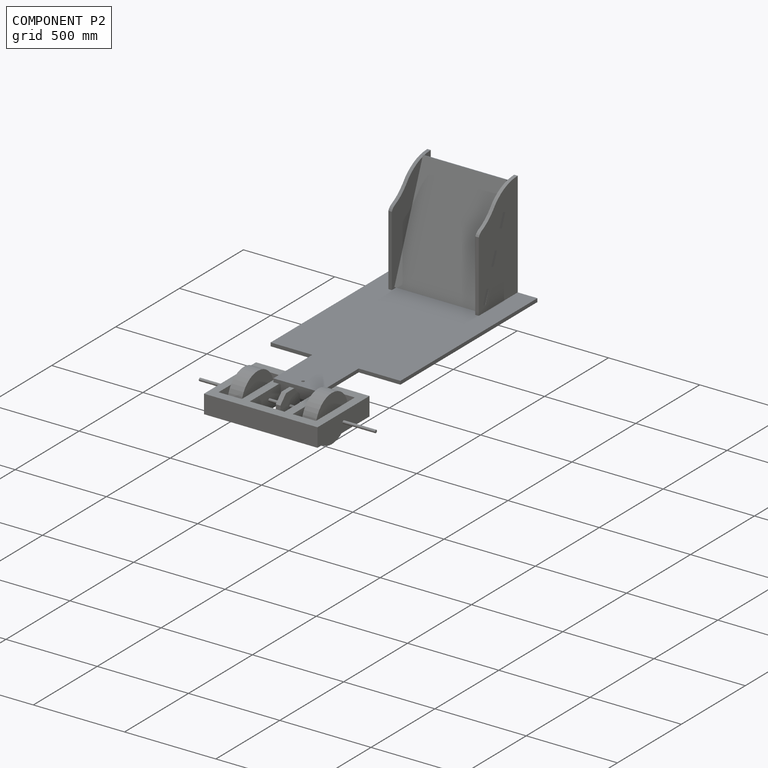
[diagram: component P2 — assembled]
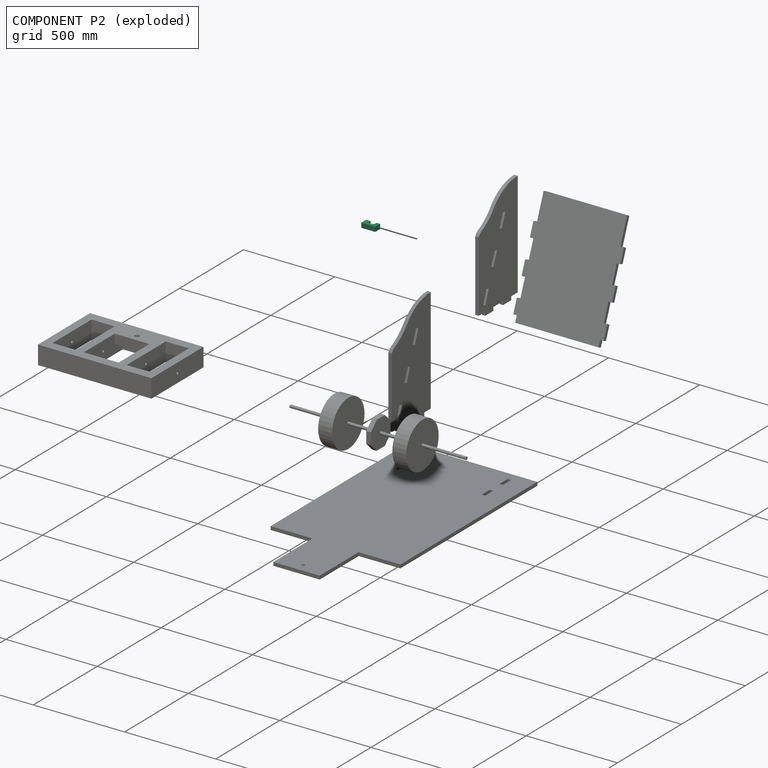
[diagram: component P2 — exploded]
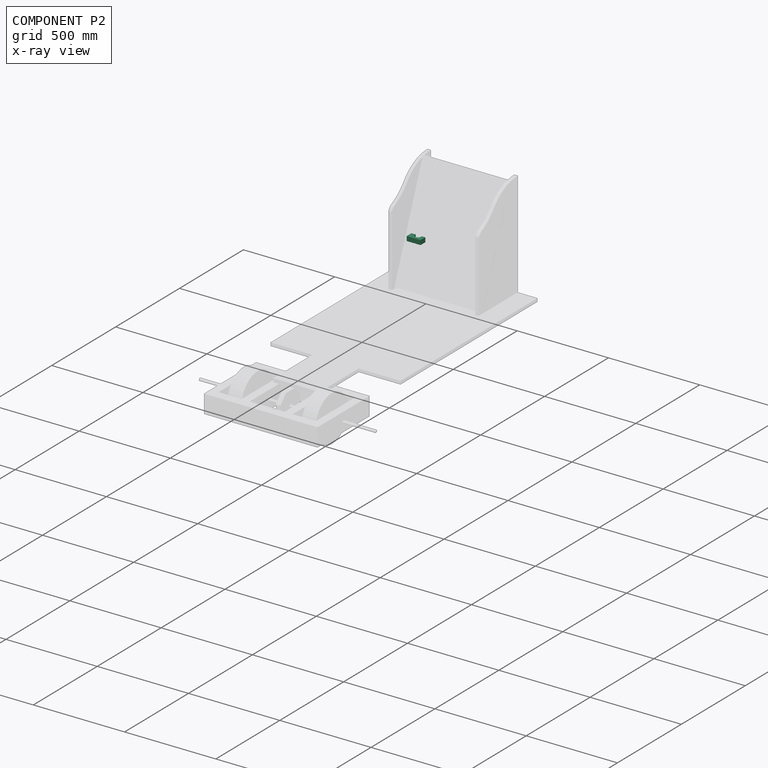
[diagram: component P2 — x-ray view]
COMPONENT P2 — recipe-attached (CADFS 00534121, mesh-verified: the recipe's output STEP matches this component's geometry to below the mesh-comparison resolution (tessellation chordal tolerance ~0.133 mm)).
Held by: FASTENED mate "Fastened 5" to P1.
Construction recipe (FeatureScript — the CAD program that rebuilds this solid; sketch coordinates are in the units given by the * unit suffixes, e.g. mm):

FeatureScript 1511;
import(path : "onshape/std/geometry.fs", version : "1511.0");
import(path : "onshape/std/common.fs", version : "1511.0");
const mm = millimeter;
const VERTEX = EntityType.VERTEX;
const EDGE = EntityType.EDGE;
const FACE = EntityType.FACE;
const BODY = EntityType.BODY;
function v(x, y){return vector(x, y);}
function OD(order){return orderDisambiguation(order);}
function OSD(set){return originalSetDisambiguation(set);}
function TD(topology){return topologyDisambiguation(topology);}
function TDD(query){return trueDependencyDisambiguation(query);}
function sQuery(a, b, c) {return sketchEntityQuery(a, b, c);}

annotation { "Feature Type Name" : "Feature", "Feature Type Description" : "" }
export const myFeature = defineFeature(function(context is Context, id is Id, definition is map)
    precondition{}
    {
        {
            var Q0;
            Q0=qCreatedBy(makeId("Top.planeOp"),FACE);
            var sketch = newSketch(context, id + "F0", { "sketchPlane" : qUnion([Q0])});
            skLineSegment(sketch, "E0.bottom", {"start": v(-42.71, 38.1) * mm, "end": v(33.49, 38.1) * mm});
            skLineSegment(sketch, "E0.top", {"start": v(-42.71, 0) * mm, "end": v(33.49, 0) * mm});
            skLineSegment(sketch, "E0.left", {"start": v(-42.71, 38.1) * mm, "end": v(-42.71, 0) * mm});
            skLineSegment(sketch, "E0.right", {"start": v(33.49, 38.1) * mm, "end": v(33.49, 0) * mm});
            skArc(sketch, "E1", {"start": v(13.54, 0) * mm, "mid": v(-2.7, 22.49) * mm, "end": v(-18.95, 0) * mm});
            skSolve(sketch);
        }
        {
            var Q0;
            Q0=qSketchRegion(id+"F0",true);
            extrude(context, id + "F1", {"entities" : qUnion([Q0]), "depth" : 25.4 * mm, "offsetDistance" : 25.4 * mm});
        }
        {
            var Q0;
            {var subQ0=sQuery(id+"F0.wireOp",EDGE,"E1");Q0=makeQuery(id+"F0.imprint","IMPRINT",FACE,{"disambiguationData":[TD([[makeQuery(id+"F0.imprint","IMPRINT",EDGE,{"derivedFrom":subQ0}),1.0]])]});}
            extrude(context, id + "F2", {"entities" : qUnion([Q0]), "operationType" : NewBodyOperationType.REMOVE, "depth" : 25.4 * mm, "offsetDistance" : 25.4 * mm});
        }
    });
PROVENANCE & LICENSES
Assembly (occurrences, transforms, mates, per-part STEP geometry): AutoMate dataset, Zenodo record 7776208, CC0.
Construction recipes: CADFS (HuggingFace VladPyatov/CADFS, CC-BY-4.0, layered over the ABC dataset), FeatureScript reconstruction programs keyed by ABC model id.
Join: ABC meta listings map ABC model id -> Onshape documentId; within a shared document, parts are matched by geometric signature (bounding-box dims + volume at 0.1% relative tolerance, exact B-rep face/solid counts).
Verification: 6 of this assembly's 7 components carry a recipe attachment, and every attachment is mesh-verified: the CADFS STEP and the AutoMate member STEP were compared as meshes in their shared local frame (symmetric sampled-point-to-mesh distance); worst across the 6 attachments: below the mesh-comparison resolution (tessellation chordal tolerance ~2.32 mm) on a 1550 mm part.
Renders: orthographic iso camera (az 35 / el 25); the floor grid conveys scale (grid pitch printed in each image; no ruler). In the exploded view each component is displaced by its stored offset vector: the offsets alone carry the explosion direction (mate normal/axis signs are not orientation cues and do not encode it), and separation distances are assigned per mate-chain, not proportionally to assembly-order depth.
